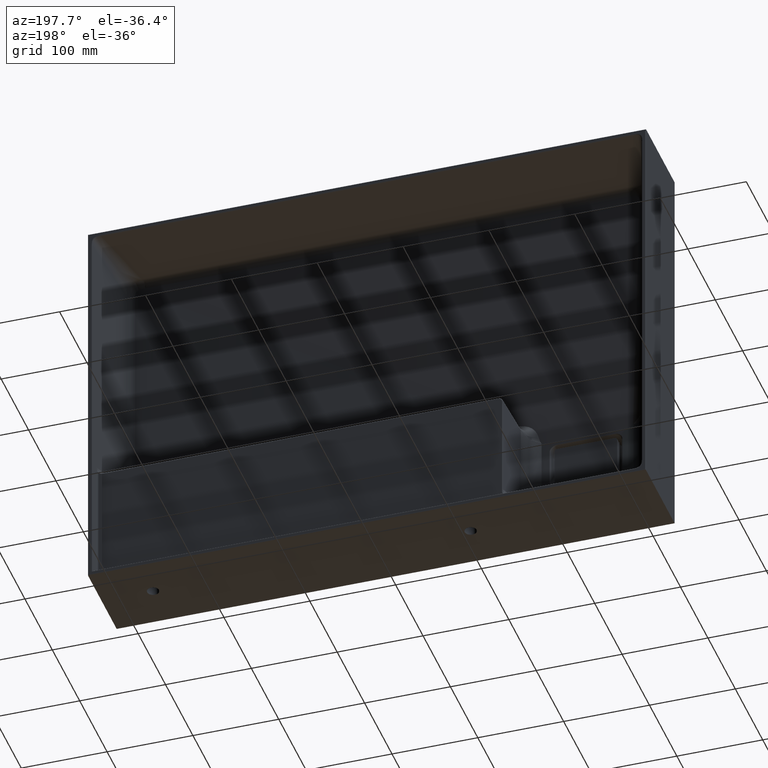
[diagram: clean part render]
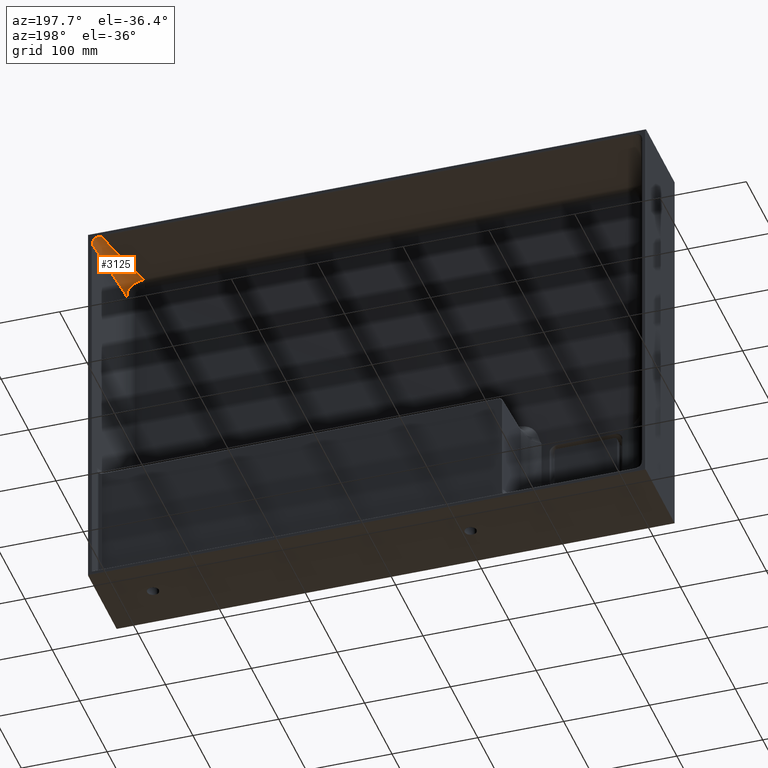
[diagram: same view with one face highlighted and labeled with its STEP entity id]
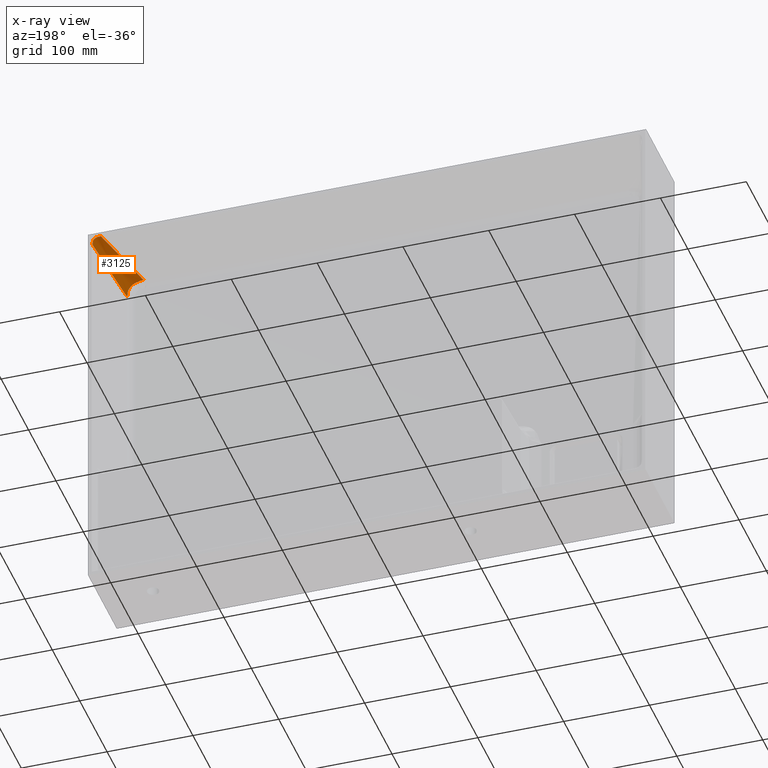
[diagram: x-ray of the same camera — body ghosted, the highlighted face saturated]
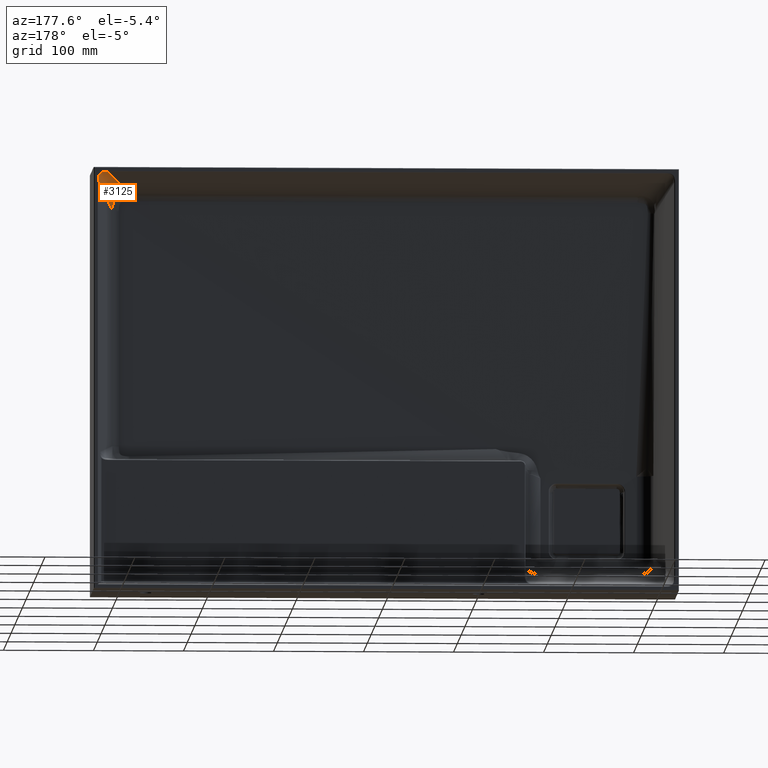
[diagram: same view with one face highlighted and labeled with its STEP entity id]
A machine part, auxiliary view. The second image highlights one B-rep face of the part: STEP entity #3125.
The next image is the same camera in x-ray: the body ghosted, the highlighted face saturated — about 0% of this face is hidden behind the body in this view.
A second angle (auxiliary view) of the same face is appended — the face is thin or edge-on in the first view.
In plain terms, the highlighted face is a freeform B-spline surface patch.
Its self-contained STEP definition (entity closure, byte-faithful):
#264 = ORIENTED_EDGE ( 'NONE', *, *, #2454, .T. ) ;
#576 = EDGE_CURVE ( 'NONE', #3024, #3400, #10326, .T. ) ;
#747 = B_SPLINE_CURVE_WITH_KNOTS ( 'NONE', 3,
 ( #7532, #7499, #7497, #7485, #7460, #7449, #7437, #7426, #7411, #7398, #7385, #7371, #7355, #7342, #7330, #7321, #7307, #7297, #7295, #7243, #7240, #7212, #7195, #7186 ),
 .UNSPECIFIED., .F., .F.,
 ( 4, 2, 2, 2, 2, 2, 2, 2, 2, 2, 2, 4 ),
 ( 0.0000000000000000000, 0.002757916509990357250, 0.005515833019980714499, 0.008273749529971072617, 0.01103166603996142900, 0.01241062429495664622, 0.01378958254995186518, 0.01654749905994237075, 0.01792645731493759317, 0.01930541556993281907, 0.02068437382492804497, 0.02206333207992327086 ),
 .UNSPECIFIED. ) ;
#975 = B_SPLINE_CURVE_WITH_KNOTS ( 'NONE', 3,
 ( #9517, #9508, #9503, #9489 ),
 .UNSPECIFIED., .F., .F.,
 ( 4, 4 ),
 ( 0.07655764724086498718, 0.9901175872699210512 ),
 .UNSPECIFIED. ) ;
#1143 = EDGE_LOOP ( 'NONE', ( #7407, #264, #2203, #5016, #10909 ) ) ;
#1422 = EDGE_CURVE ( 'NONE', #3185, #3036, #747, .T. ) ;
#1522 = EDGE_CURVE ( 'NONE', #3036, #3400, #8727, .T. ) ;
#2203 = ORIENTED_EDGE ( 'NONE', *, *, #5748, .F. ) ;
#2454 = EDGE_CURVE ( 'NONE', #3024, #5634, #6275, .T. ) ;
#3024 = VERTEX_POINT ( 'NONE', #10823 ) ;
#3036 = VERTEX_POINT ( 'NONE', #10813 ) ;
#3125 = ADVANCED_FACE ( 'NONE', ( #10011 ), #5267, .T. ) ;
#3185 = VERTEX_POINT ( 'NONE', #9003 ) ;
#3400 = VERTEX_POINT ( 'NONE', #7478 ) ;
#3529 = CARTESIAN_POINT ( 'NONE',  ( 317.5319382494342335, 104.3874434508449269, 227.9934735509305881 ) ) ;
#5016 = ORIENTED_EDGE ( 'NONE', *, *, #1422, .T. ) ;
#5267 = B_SPLINE_SURFACE_WITH_KNOTS ( 'NONE', 5, 3, ( 
 ( #9971, #9961, #9959, #9947 ),
 ( #9923, #9916, #9914, #9889 ),
 ( #9874, #9864, #9837, #9823 ),
 ( #9811, #9793, #9774, #9762 ),
 ( #9761, #9750, #9739, #9725 ),
 ( #9714, #9687, #9659, #9643 ),
 ( #9630, #9603, #9568, #9554 ),
 ( #9541, #9530, #9495, #9482 ) ),
 .UNSPECIFIED., .F., .F., .F.,
 ( 6, 2, 6 ),
 ( 4, 4 ),
 ( 0.0000000000000000000, 0.5000000000000000000, 1.000000000000000000 ),
 ( 0.07106325996927276289, 0.1646124316094207951 ),
 .UNSPECIFIED. ) ;
#5271 = CARTESIAN_POINT ( 'NONE',  ( 310.0405550714335732, 104.2588190451831878, 229.8014011617114818 ) ) ;
#5634 = VERTEX_POINT ( 'NONE', #9702 ) ;
#5748 = EDGE_CURVE ( 'NONE', #3185, #5634, #975, .T. ) ;
#6275 = B_SPLINE_CURVE_WITH_KNOTS ( 'NONE', 3,
 ( #7648, #7646, #7634, #7602, #7601, #7594, #7568, #7554, #7553, #7520, #7508, #7507, #3529, #7500, #7463, #7462, #7450, #7435, #7414, #7399, #7383, #7357, #7344, #7328, #7309, #7298 ),
 .UNSPECIFIED., .F., .F.,
 ( 4, 2, 2, 2, 2, 2, 2, 2, 2, 2, 2, 2, 4 ),
 ( 0.0000000000000000000, 0.002057495874643085285, 0.004114991749286170571, 0.005143739686607795396, 0.006172487623929419354, 0.007201235561251044179, 0.008229983498572669004, 0.009258731435894293829, 0.01028747937321591865, 0.01131622731053754348, 0.01234497524785916830, 0.01440247112250241622, 0.01645996699714566414 ),
 .UNSPECIFIED. ) ;
#6334 = CARTESIAN_POINT ( 'NONE',  ( 282.2514038764123256, 35.64554628564211214, 211.4165301357361102 ) ) ;
#6349 = CARTESIAN_POINT ( 'NONE',  ( 282.9049595707685967, 35.64554628601015196, 211.4165301357424767 ) ) ;
#6364 = CARTESIAN_POINT ( 'NONE',  ( 283.5747364913466981, 35.62968345388622993, 211.4124563392294078 ) ) ;
#6366 = CARTESIAN_POINT ( 'NONE',  ( 284.9542591677040946, 35.57013521278842916, 211.3740682431513562 ) ) ;
#6376 = CARTESIAN_POINT ( 'NONE',  ( 285.6641321102848678, 35.52642985667680620, 211.3397012005163447 ) ) ;
#6406 = CARTESIAN_POINT ( 'NONE',  ( 286.3991241643598187, 35.47186367215447689, 211.2773302236733741 ) ) ;
#6424 = CARTESIAN_POINT ( 'NONE',  ( 286.4077300242547039, 35.47122395490361413, 211.2765974492992882 ) ) ;
#6425 = CARTESIAN_POINT ( 'NONE',  ( 286.4220332781067668, 35.47015882470205383, 211.2753737206433868 ) ) ;
#6457 = CARTESIAN_POINT ( 'NONE',  ( 286.4434879365312554, 35.46855871336939003, 211.2735306607108896 ) ) ;
#6481 = CARTESIAN_POINT ( 'NONE',  ( 286.4935471759971506, 35.46480827618681531, 211.2691777383167278 ) ) ;
#6483 = CARTESIAN_POINT ( 'NONE',  ( 286.5936585323686359, 35.45724057214937375, 211.2602606584362377 ) ) ;
#6496 = CARTESIAN_POINT ( 'NONE',  ( 286.7938477593408493, 35.44184224076490608, 211.2415701500535761 ) ) ;
#6512 = CARTESIAN_POINT ( 'NONE',  ( 286.9653633162081974, 35.42820810241612151, 211.2240429260165229 ) ) ;
#6525 = CARTESIAN_POINT ( 'NONE',  ( 287.3082392546471056, 35.40040038522556642, 211.1868801238985895 ) ) ;
#6537 = CARTESIAN_POINT ( 'NONE',  ( 287.5366187707576273, 35.38114238031626968, 211.1592923442883034 ) ) ;
#6539 = CARTESIAN_POINT ( 'NONE',  ( 288.2206110189094375, 35.32155120340043908, 211.0673500525817872 ) ) ;
#6551 = CARTESIAN_POINT ( 'NONE',  ( 288.6751088494547162, 35.27939815197967022, 210.9937953297520892 ) ) ;
#6579 = CARTESIAN_POINT ( 'NONE',  ( 290.0285564949742252, 35.14852478484474574, 210.7312230954331369 ) ) ;
#6593 = CARTESIAN_POINT ( 'NONE',  ( 290.9176799915691731, 35.05540562773114743, 210.5000206232591324 ) ) ;
#6594 = CARTESIAN_POINT ( 'NONE',  ( 291.7742886510271205, 34.96418055720784679, 210.2028337933431601 ) ) ;
#6725 = CARTESIAN_POINT ( 'NONE',  ( 282.2514038764123256, 35.64554628564211214, 211.4165301357361102 ) ) ;
#7186 = CARTESIAN_POINT ( 'NONE',  ( 291.7742886510271205, 34.96418055720784679, 210.2028337933431601 ) ) ;
#7195 = CARTESIAN_POINT ( 'NONE',  ( 292.2083031719174073, 34.92975336413244491, 210.0565174150987957 ) ) ;
#7212 = CARTESIAN_POINT ( 'NONE',  ( 292.6403906776107533, 34.89502267135154767, 209.8912937972030193 ) ) ;
#7240 = CARTESIAN_POINT ( 'NONE',  ( 293.4814699522848969, 34.82869365132948758, 209.5247242811728938 ) ) ;
#7243 = CARTESIAN_POINT ( 'NONE',  ( 293.8919311741682918, 34.79696588401195356, 209.3230170785804205 ) ) ;
#7295 = CARTESIAN_POINT ( 'NONE',  ( 294.6908874076063967, 34.73996436487677641, 208.8790382945517479 ) ) ;
#7297 = CARTESIAN_POINT ( 'NONE',  ( 295.0793838267683213, 34.71469799013587476, 208.6367683462192986 ) ) ;
#7298 = CARTESIAN_POINT ( 'NONE',  ( 319.8014011616839980, 104.2588190450799601, 220.0405550708178737 ) ) ;
#7307 = CARTESIAN_POINT ( 'NONE',  ( 295.8323792159899313, 34.67560666729767860, 208.1073684673686444 ) ) ;
#7309 = CARTESIAN_POINT ( 'NONE',  ( 319.8014011614150718, 104.2588190452779600, 220.7223765323035138 ) ) ;
#7321 = CARTESIAN_POINT ( 'NONE',  ( 296.1973484247375268, 34.66195625307150152, 207.8193155811713098 ) ) ;
#7328 = CARTESIAN_POINT ( 'NONE',  ( 319.8018388486736967, 104.2669777640534932, 221.4041083885435057 ) ) ;
#7330 = CARTESIAN_POINT ( 'NONE',  ( 297.2274816498760401, 34.64606402503210347, 206.9059351402562186 ) ) ;
#7342 = CARTESIAN_POINT ( 'NONE',  ( 297.8373152097716456, 34.67050030153953344, 206.2254543450104052 ) ) ;
#7344 = CARTESIAN_POINT ( 'NONE',  ( 319.7305084920110971, 104.2894376399837313, 222.7606767892610264 ) ) ;
#7355 = CARTESIAN_POINT ( 'NONE',  ( 298.6405649685276558, 34.75029948434270466, 205.1008247289633744 ) ) ;
#7357 = CARTESIAN_POINT ( 'NONE',  ( 319.6604182298742103, 104.3037244191413038, 223.4356714963435593 ) ) ;
#7371 = CARTESIAN_POINT ( 'NONE',  ( 298.8881746610123287, 34.78348748182316541, 204.7103835724238650 ) ) ;
#7383 = CARTESIAN_POINT ( 'NONE',  ( 319.4628916582983038, 104.3262147958254360, 224.4394496403984363 ) ) ;
#7385 = CARTESIAN_POINT ( 'NONE',  ( 299.3389784340703272, 34.85712258703035360, 203.9133406301008904 ) ) ;
#7398 = CARTESIAN_POINT ( 'NONE',  ( 299.5435332644797768, 34.89768047563587317, 203.5048850367908813 ) ) ;
#7399 = CARTESIAN_POINT ( 'NONE',  ( 319.3810800277796602, 104.3339727679301632, 224.7743719590661726 ) ) ;
#7407 = ORIENTED_EDGE ( 'NONE', *, *, #576, .F. ) ;
#7411 = CARTESIAN_POINT ( 'NONE',  ( 300.1011975932394193, 35.02495803084233472, 202.2524045052632005 ) ) ;
#7414 = CARTESIAN_POINT ( 'NONE',  ( 319.1794733065842138, 104.3491866039239824, 225.4314263538521459 ) ) ;
#7426 = CARTESIAN_POINT ( 'NONE',  ( 300.3989749195080776, 35.11731119383330935, 201.3775663046626505 ) ) ;
#7435 = CARTESIAN_POINT ( 'NONE',  ( 319.0603663854701040, 104.3566192397615140, 225.7520283764146711 ) ) ;
#7437 = CARTESIAN_POINT ( 'NONE',  ( 300.8644940251855928, 35.29549454909688677, 199.6057424360488142 ) ) ;
#7449 = CARTESIAN_POINT ( 'NONE',  ( 301.0346273886847825, 35.38249457583529534, 198.7026930802994400 ) ) ;
#7450 = CARTESIAN_POINT ( 'NONE',  ( 318.7766592564678945, 104.3700809090221213, 226.3735553235854070 ) ) ;
#7460 = CARTESIAN_POINT ( 'NONE',  ( 301.2782566038227401, 35.53906301020647618, 196.8807801496422769 ) ) ;
#7462 = CARTESIAN_POINT ( 'NONE',  ( 318.6107952876781155, 104.3761462151454396, 226.6764153319145123 ) ) ;
#7463 = CARTESIAN_POINT ( 'NONE',  ( 318.2261777041582036, 104.3848381169847954, 227.2481831852373375 ) ) ;
#7478 = CARTESIAN_POINT ( 'NONE',  ( 282.2514038764123256, 35.64554628564211214, 211.4165301357361102 ) ) ;
#7485 = CARTESIAN_POINT ( 'NONE',  ( 301.3510337174621441, 35.60851528533565613, 195.9665379677788053 ) ) ;
#7497 = CARTESIAN_POINT ( 'NONE',  ( 301.4332830489329353, 35.71020780026114494, 194.1324362558662244 ) ) ;
#7499 = CARTESIAN_POINT ( 'NONE',  ( 301.4423275489041316, 35.74182354309052556, 193.2125188880526139 ) ) ;
#7500 = CARTESIAN_POINT ( 'NONE',  ( 318.0109018713671958, 104.3873218575186570, 227.5120691353123732 ) ) ;
#7507 = CARTESIAN_POINT ( 'NONE',  ( 317.2670344576661705, 104.3850571867196777, 228.2117844016121069 ) ) ;
#7508 = CARTESIAN_POINT ( 'NONE',  ( 316.6951480981916234, 104.3764942105903799, 228.5997977564913128 ) ) ;
#7520 = CARTESIAN_POINT ( 'NONE',  ( 316.3952388146195176, 104.3705254109497531, 228.7654467801337148 ) ) ;
#7532 = CARTESIAN_POINT ( 'NONE',  ( 301.4423275491127470, 35.74182354306726239, 192.2903972529838938 ) ) ;
#7553 = CARTESIAN_POINT ( 'NONE',  ( 315.7733016904735450, 104.3571034711963250, 229.0518828259147881 ) ) ;
#7554 = CARTESIAN_POINT ( 'NONE',  ( 315.4494676540927571, 104.3496036123653994, 229.1731450697138257 ) ) ;
#7568 = CARTESIAN_POINT ( 'NONE',  ( 314.7926049065690108, 104.3343956382872051, 229.3762355396287091 ) ) ;
#7594 = CARTESIAN_POINT ( 'NONE',  ( 314.4609940510814567, 104.3267084463308265, 229.4579308219721270 ) ) ;
#7601 = CARTESIAN_POINT ( 'NONE',  ( 313.4588130028187152, 104.3042221088597046, 229.6572377545130053 ) ) ;
#7602 = CARTESIAN_POINT ( 'NONE',  ( 312.7808753450589734, 104.2898210727126269, 229.7289292635578306 ) ) ;
#7634 = CARTESIAN_POINT ( 'NONE',  ( 311.4135820392755818, 104.2670866495198254, 229.8018467783157348 ) ) ;
#7646 = CARTESIAN_POINT ( 'NONE',  ( 310.7264570105672306, 104.2588190451634489, 229.8014011615997561 ) ) ;
#7648 = CARTESIAN_POINT ( 'NONE',  ( 310.0405550714335732, 104.2588190451831878, 229.8014011617114818 ) ) ;
#8509 = CARTESIAN_POINT ( 'NONE',  ( 291.5144542744271803, 58.51663720546692815, 217.5448204777219132 ) ) ;
#8727 = B_SPLINE_CURVE_WITH_KNOTS ( 'NONE', 3,
 ( #6594, #6593, #6579, #6551, #6539, #6537, #6525, #6512, #6496, #6483, #6481, #6457, #6425, #6424, #6406, #6376, #6366, #6364, #6349, #6334 ),
 .UNSPECIFIED., .F., .F.,
 ( 4, 2, 2, 2, 1, 1, 1, 1, 2, 2, 2, 4 ),
 ( 0.0000000000000000000, 0.2500000000007469581, 0.3750000000011278756, 0.4375000000013113399, 0.4687500000014105384, 0.4843750000014675483, 0.4921875000014885870, 0.4960937500014994117, 0.4980468750015047963, 0.5000000000015102364, 0.7500000000007551737, 1.000000000000000000 ),
 .UNSPECIFIED. ) ;
#9003 = CARTESIAN_POINT ( 'NONE',  ( 301.4423275491127470, 35.74182354306726239, 192.2903972529838938 ) ) ;
#9482 = CARTESIAN_POINT ( 'NONE',  ( 312.7891914042624535, 111.0453859734108306, 231.6198562895098689 ) ) ;
#9489 = CARTESIAN_POINT ( 'NONE',  ( 319.8014011616839980, 104.2588190450799601, 220.0405550708178737 ) ) ;
#9495 = CARTESIAN_POINT ( 'NONE',  ( 301.3466575821661877, 82.79300471586773824, 224.0496535472950086 ) ) ;
#9503 = CARTESIAN_POINT ( 'NONE',  ( 313.6817099574943200, 81.41982054441199068, 210.7905024648733843 ) ) ;
#9508 = CARTESIAN_POINT ( 'NONE',  ( 307.5620187533014587, 58.58082204373192781, 201.5404498589289233 ) ) ;
#9517 = CARTESIAN_POINT ( 'NONE',  ( 301.4423275491127470, 35.74182354306726239, 192.2903972529838938 ) ) ;
#9530 = CARTESIAN_POINT ( 'NONE',  ( 289.9041237609098403, 54.54062346068806733, 216.4794508057134124 ) ) ;
#9541 = CARTESIAN_POINT ( 'NONE',  ( 278.4615899301585387, 26.28824220345505225, 208.9092480635816003 ) ) ;
#9554 = CARTESIAN_POINT ( 'NONE',  ( 314.1959301606315194, 110.6937012843185784, 231.5256226610771932 ) ) ;
#9568 = CARTESIAN_POINT ( 'NONE',  ( 303.3702647497663065, 82.28710292493425982, 223.9140975698011573 ) ) ;
#9603 = CARTESIAN_POINT ( 'NONE',  ( 292.5445993375958551, 53.88050456672560529, 216.3025724795029987 ) ) ;
#9630 = CARTESIAN_POINT ( 'NONE',  ( 281.7189339180755496, 25.47390620647579240, 208.6910473908234280 ) ) ;
#9643 = CARTESIAN_POINT ( 'NONE',  ( 315.6026689170005852, 110.3420165952263119, 231.4313890326445460 ) ) ;
#9659 = CARTESIAN_POINT ( 'NONE',  ( 305.3938719173664254, 81.78120113389974222, 223.7785415926844053 ) ) ;
#9687 = CARTESIAN_POINT ( 'NONE',  ( 295.1850749142817563, 53.22038567282459809, 216.1256941532651581 ) ) ;
#9702 = CARTESIAN_POINT ( 'NONE',  ( 319.8014011616839980, 104.2588190450799601, 220.0405550708178737 ) ) ;
#9714 = CARTESIAN_POINT ( 'NONE',  ( 284.9762779059926174, 24.65957020949653611, 208.4728467180652274 ) ) ;
#9725 = CARTESIAN_POINT ( 'NONE',  ( 318.7122468470475951, 109.7167993701733906, 230.6551535522621919 ) ) ;
#9739 = CARTESIAN_POINT ( 'NONE',  ( 309.8670295344460328, 80.88182016987273926, 222.6619194192945770 ) ) ;
#9750 = CARTESIAN_POINT ( 'NONE',  ( 301.0218122130052052, 52.04684097239986329, 214.6686852954070162 ) ) ;
#9761 = CARTESIAN_POINT ( 'NONE',  ( 292.1765949012691976, 23.21186177042229914, 206.6754511719599350 ) ) ;
#9762 = CARTESIAN_POINT ( 'NONE',  ( 320.6551535522623340, 109.7167993701733906, 228.7122468470474530 ) ) ;
#9774 = CARTESIAN_POINT ( 'NONE',  ( 312.6619194266514228, 80.88182016987273926, 219.8670295292528749 ) ) ;
#9793 = CARTESIAN_POINT ( 'NONE',  ( 304.6686852967054051, 52.04684097245397822, 211.0218122164670547 ) ) ;
#9811 = CARTESIAN_POINT ( 'NONE',  ( 296.6754511719601055, 23.21186177042230270, 202.1765949012689987 ) ) ;
#9823 = CARTESIAN_POINT ( 'NONE',  ( 321.4313890326448018, 110.3420165952263119, 225.6026689170003579 ) ) ;
#9837 = CARTESIAN_POINT ( 'NONE',  ( 313.7785415887898921, 81.78120113389974222, 215.3938719121732959 ) ) ;
#9864 = CARTESIAN_POINT ( 'NONE',  ( 306.1256941523997739, 53.22038567255413000, 205.1850749073575741 ) ) ;
#9874 = CARTESIAN_POINT ( 'NONE',  ( 298.4728467180653979, 24.65957020949653256, 194.9762779059924753 ) ) ;
#9889 = CARTESIAN_POINT ( 'NONE',  ( 321.5256226610774206, 110.6937012843185784, 224.1959301606313204 ) ) ;
#9914 = CARTESIAN_POINT ( 'NONE',  ( 313.9140975672048057, 82.28710292493425982, 213.3702647458713670 ) ) ;
#9916 = CARTESIAN_POINT ( 'NONE',  ( 306.3025724786376145, 53.88050456667150456, 202.5445993311043935 ) ) ;
#9923 = CARTESIAN_POINT ( 'NONE',  ( 298.6910473908235986, 25.47390620647578885, 191.7189339180754359 ) ) ;
#9947 = CARTESIAN_POINT ( 'NONE',  ( 321.6198562895100395, 111.0453859734108306, 222.7891914042622830 ) ) ;
#9959 = CARTESIAN_POINT ( 'NONE',  ( 314.0496535472082655, 82.79300471554319074, 211.3466575795694382 ) ) ;
#9961 = CARTESIAN_POINT ( 'NONE',  ( 306.4794508056421023, 54.54062346042121590, 199.9041237548512413 ) ) ;
#9971 = CARTESIAN_POINT ( 'NONE',  ( 298.9092480635817424, 26.28824220345504870, 188.4615899301583681 ) ) ;
#10011 = FACE_OUTER_BOUND ( 'NONE', #1143, .T. ) ;
#10141 = CARTESIAN_POINT ( 'NONE',  ( 300.7775046729132669, 81.38772812532927503, 223.6731108197178344 ) ) ;
#10326 = B_SPLINE_CURVE_WITH_KNOTS ( 'NONE', 3,
 ( #5271, #10141, #8509, #6725 ),
 .UNSPECIFIED., .F., .F.,
 ( 4, 4 ),
 ( 0.009882412721919418483, 0.9247260494543676490 ),
 .UNSPECIFIED. ) ;
#10813 = CARTESIAN_POINT ( 'NONE',  ( 291.7742886510271205, 34.96418055720784679, 210.2028337933431601 ) ) ;
#10823 = CARTESIAN_POINT ( 'NONE',  ( 310.0405550714335732, 104.2588190451831878, 229.8014011617114818 ) ) ;
#10909 = ORIENTED_EDGE ( 'NONE', *, *, #1522, .T. ) ;